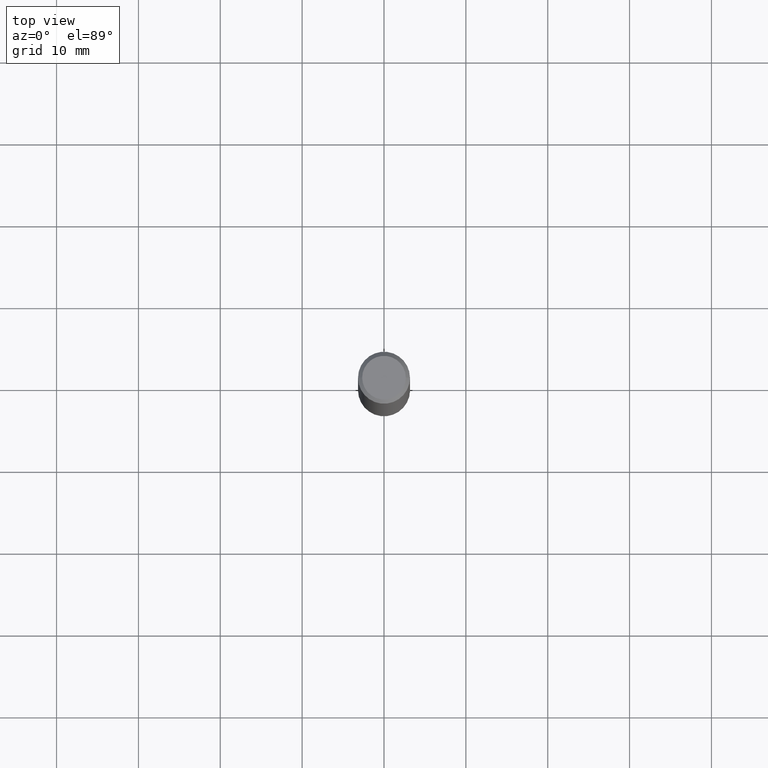
[diagram: clean part render]
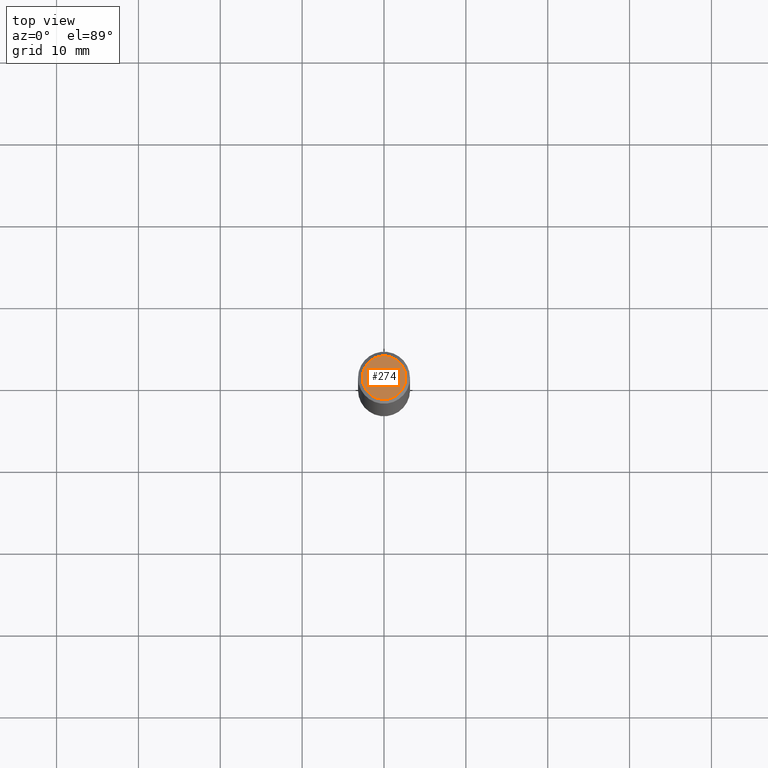
[diagram: same view with one face highlighted and labeled with its STEP entity id]
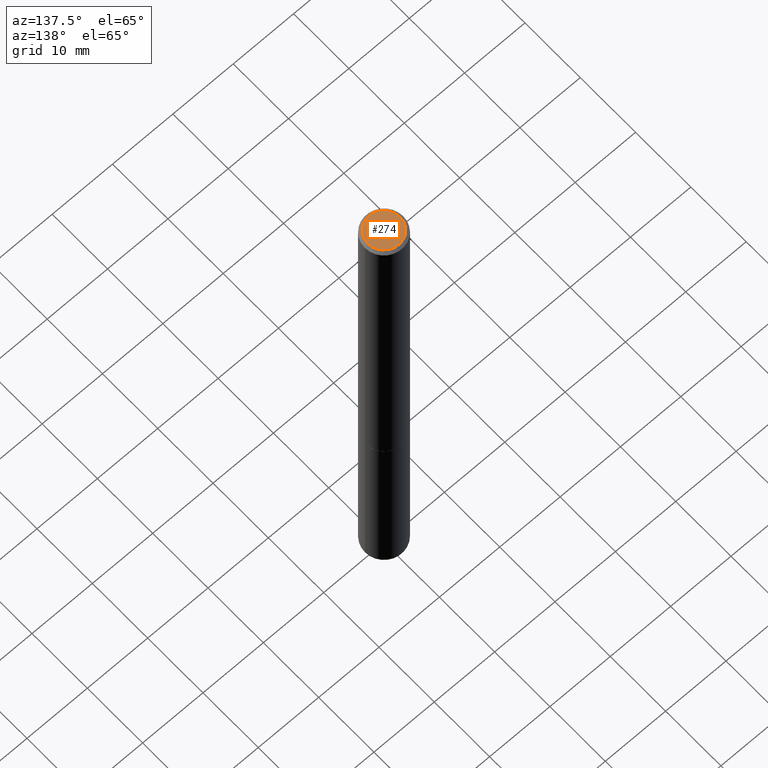
[diagram: same view with one face highlighted and labeled with its STEP entity id]
A machine part, top view. The second image highlights one B-rep face of the part: STEP entity #274.
A second angle (auxiliary view) of the same face is appended — the face is thin or edge-on in the first view.
In plain terms, the highlighted planar face has unit normal (0, -0, -1).
Its self-contained STEP definition (entity closure, byte-faithful):
#35 = FACE_OUTER_BOUND ( 'NONE', #467, .T. ) ;
#62 = EDGE_CURVE ( 'NONE', #360, #492, #186, .T. ) ;
#66 = CARTESIAN_POINT ( 'NONE',  ( 1.043851414335219781E-45, -1.490343170380447145E-31, -4.268512490100411279E-17 ) ) ;
#75 = DIRECTION ( 'NONE',  ( 2.438088387897960049E-29, -3.491481338843145188E-15, -1.000000000000000000 ) ) ;
#99 = DIRECTION ( 'NONE',  ( -2.445468806185136597E-29, 3.491481338843145583E-15, 1.000000000000000000 ) ) ;
#108 = AXIS2_PLACEMENT_3D ( 'NONE', #161, #75, #193 ) ;
#161 = CARTESIAN_POINT ( 'NONE',  ( 7.332110811570528967E-16, 0.1049999999999992883, -3.879481030290298637E-16 ) ) ;
#176 = CARTESIAN_POINT ( 'NONE',  ( -0.1049999999999992883, 7.681258945454841514E-16, -4.268512490100935748E-17 ) ) ;
#181 = DIRECTION ( 'NONE',  ( 1.000000000000000000, -6.982962677686267499E-15, 4.874400871621271286E-29 ) ) ;
#186 = CIRCLE ( 'NONE', #212, 0.1049999999999992883 ) ;
#193 = DIRECTION ( 'NONE',  ( -1.000000000000000000, 6.982962677686265922E-15, -4.876176775795935793E-29 ) ) ;
#204 = CIRCLE ( 'NONE', #221, 0.1049999999999992883 ) ;
#211 = ORIENTED_EDGE ( 'NONE', *, *, #397, .T. ) ;
#212 = AXIS2_PLACEMENT_3D ( 'NONE', #265, #481, #181 ) ;
#221 = AXIS2_PLACEMENT_3D ( 'NONE', #66, #99, #407 ) ;
#265 = CARTESIAN_POINT ( 'NONE',  ( 1.043851414335219781E-45, -1.490343170380447145E-31, -4.268512490100411279E-17 ) ) ;
#274 = ADVANCED_FACE ( 'NONE', ( #35 ), #388, .F. ) ;
#312 = ORIENTED_EDGE ( 'NONE', *, *, #62, .T. ) ;
#341 = CARTESIAN_POINT ( 'NONE',  ( 0.1049999999999992883, -8.238720831321533257E-16, -4.268512490099867088E-17 ) ) ;
#360 = VERTEX_POINT ( 'NONE', #176 ) ;
#388 = PLANE ( 'NONE',  #108 ) ;
#397 = EDGE_CURVE ( 'NONE', #492, #360, #204, .T. ) ;
#407 = DIRECTION ( 'NONE',  ( 1.000000000000000000, -6.982962677686267499E-15, 4.874400871621271286E-29 ) ) ;
#467 = EDGE_LOOP ( 'NONE', ( #312, #211 ) ) ;
#481 = DIRECTION ( 'NONE',  ( -2.445468806185136597E-29, 3.491481338843145583E-15, 1.000000000000000000 ) ) ;
#492 = VERTEX_POINT ( 'NONE', #341 ) ;